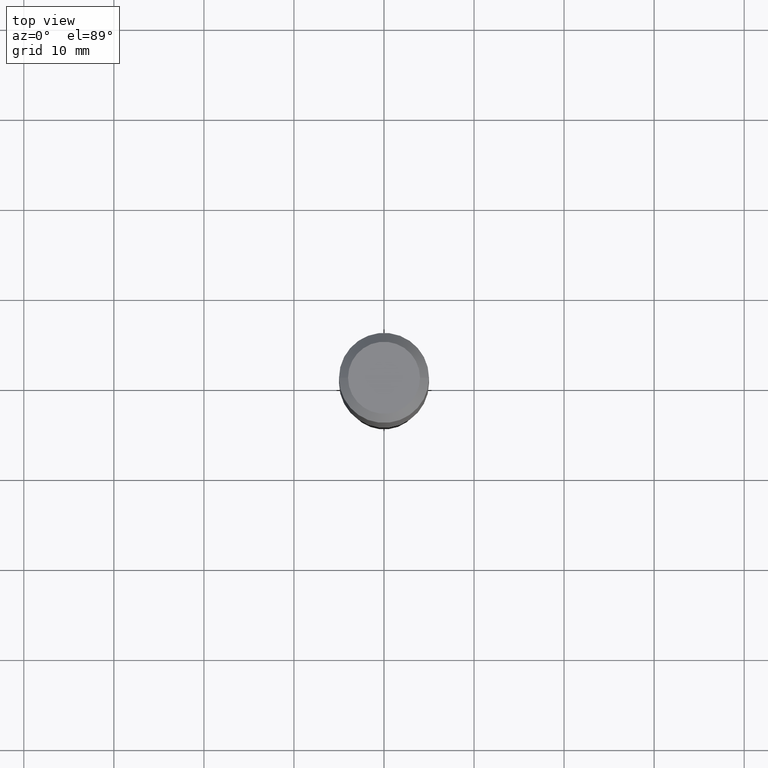
[diagram: clean part render]
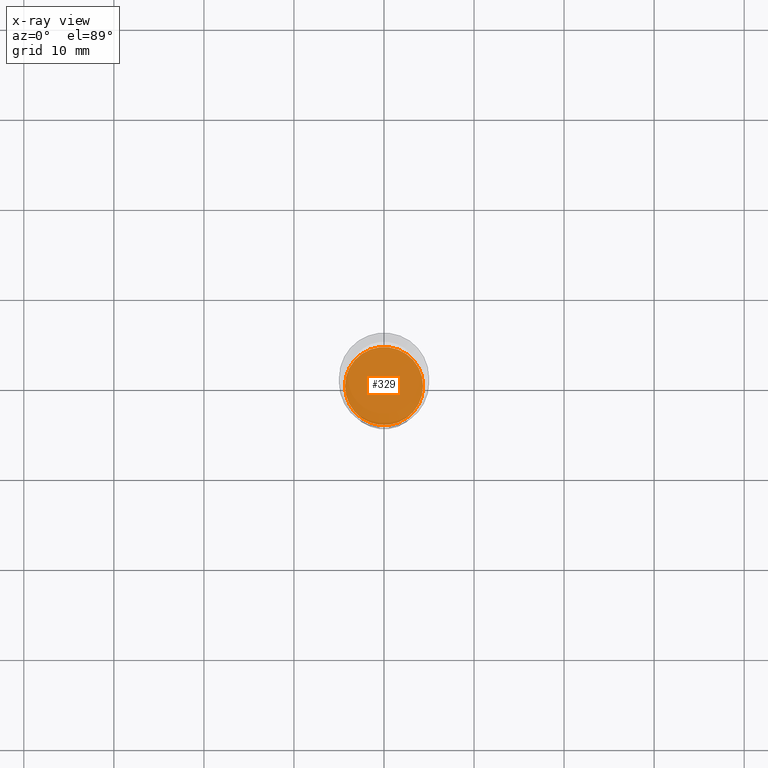
[diagram: x-ray — body ghosted, one internal face saturated and labeled with its STEP entity id]
A machine part, top view, then the same camera in x-ray: the body is ghosted and one INTERNAL B-rep face — a face not visible from any outside direction — is saturated and labeled: STEP entity #329.
In plain terms, the highlighted planar face has unit normal (-0, 0, 1).
Its self-contained STEP definition (entity closure, byte-faithful):
#24 = ORIENTED_EDGE ( 'NONE', *, *, #503, .F. ) ;
#51 = CIRCLE ( 'NONE', #269, 0.1707500000000000129 ) ;
#66 = CARTESIAN_POINT ( 'NONE',  ( 2.814045157332559915E-29, -1.078662376088720765E-14, -2.118600000000000261 ) ) ;
#73 = ORIENTED_EDGE ( 'NONE', *, *, #206, .F. ) ;
#97 = CARTESIAN_POINT ( 'NONE',  ( 0.1707500000000000129, -8.589393241688020280E-15, -2.118600000000000261 ) ) ;
#114 = VERTEX_POINT ( 'NONE', #97 ) ;
#118 = DIRECTION ( 'NONE',  ( -2.445468806185136597E-29, 3.491481338843145583E-15, 1.000000000000000000 ) ) ;
#129 = CIRCLE ( 'NONE', #323, 0.1707500000000000129 ) ;
#206 = EDGE_CURVE ( 'NONE', #423, #114, #129, .T. ) ;
#269 = AXIS2_PLACEMENT_3D ( 'NONE', #471, #118, #432 ) ;
#297 = CARTESIAN_POINT ( 'NONE',  ( 5.180970212783832118E-29, -7.397052364473089956E-15, -2.118600000000000261 ) ) ;
#303 = FACE_OUTER_BOUND ( 'NONE', #389, .T. ) ;
#311 = PLANE ( 'NONE',  #331 ) ;
#323 = AXIS2_PLACEMENT_3D ( 'NONE', #297, #452, #449 ) ;
#329 = ADVANCED_FACE ( 'NONE', ( #303 ), #311, .F. ) ;
#331 = AXIS2_PLACEMENT_3D ( 'NONE', #66, #424, #341 ) ;
#341 = DIRECTION ( 'NONE',  ( 1.000000000000000000, -6.982962677686265922E-15, 4.876176775795935793E-29 ) ) ;
#389 = EDGE_LOOP ( 'NONE', ( #24, #73 ) ) ;
#423 = VERTEX_POINT ( 'NONE', #475 ) ;
#424 = DIRECTION ( 'NONE',  ( -2.438088387897960049E-29, 3.491481338843145188E-15, 1.000000000000000000 ) ) ;
#432 = DIRECTION ( 'NONE',  ( 1.000000000000000000, -6.982962677686265922E-15, 0.000000000000000000 ) ) ;
#449 = DIRECTION ( 'NONE',  ( 1.000000000000000000, -6.982962677686265922E-15, 0.000000000000000000 ) ) ;
#452 = DIRECTION ( 'NONE',  ( -2.445468806185136597E-29, 3.491481338843145583E-15, 1.000000000000000000 ) ) ;
#471 = CARTESIAN_POINT ( 'NONE',  ( 5.180970212783832118E-29, -7.397052364473089956E-15, -2.118600000000000261 ) ) ;
#475 = CARTESIAN_POINT ( 'NONE',  ( -0.1707500000000000129, -6.181151415988607201E-15, -2.118600000000000261 ) ) ;
#503 = EDGE_CURVE ( 'NONE', #114, #423, #51, .T. ) ;